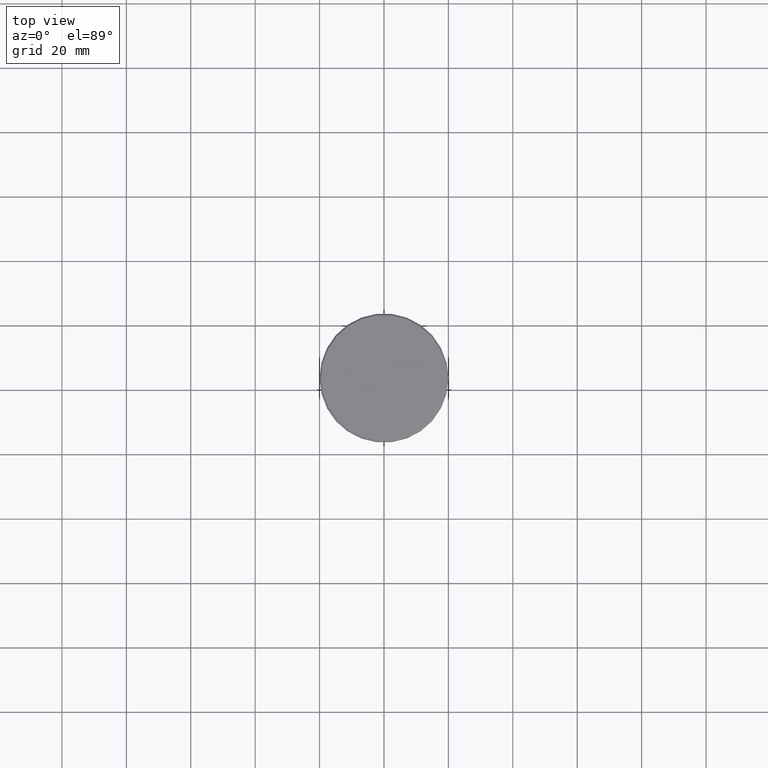
[diagram: clean part render]
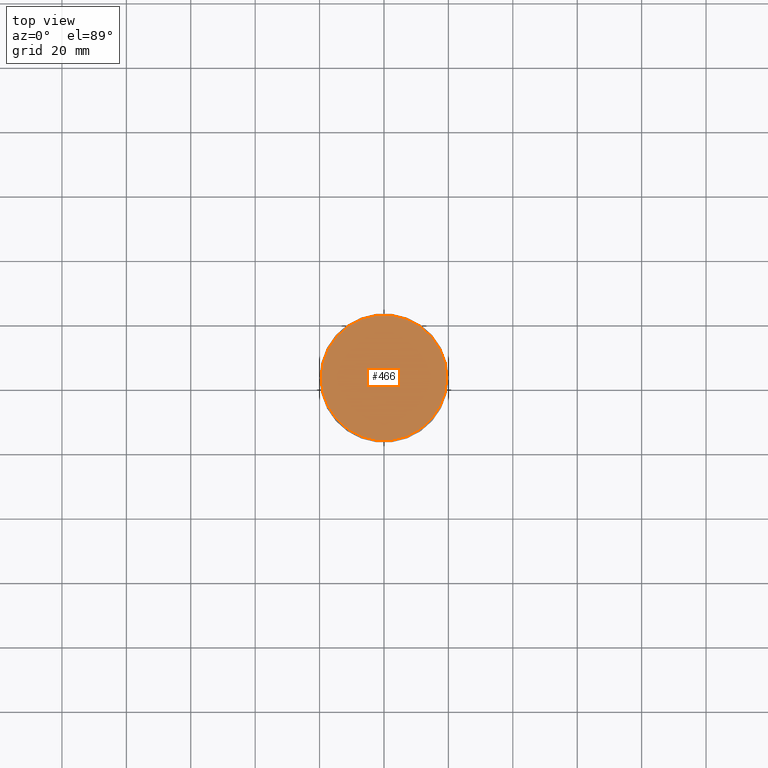
[diagram: same view with one face highlighted and labeled with its STEP entity id]
A machine part, top view. The second image highlights one B-rep face of the part: STEP entity #466.
In plain terms, the highlighted planar face has unit normal (0, -0, 1).
Its self-contained STEP definition (entity closure, byte-faithful):
#181 = PLANE ( 'NONE',  #854 ) ;
#268 = DIRECTION ( 'NONE',  ( -0.000000000000000000, -0.000000000000000000, 1.000000000000000000 ) ) ;
#362 = FACE_OUTER_BOUND ( 'NONE', #605, .T. ) ;
#377 = CARTESIAN_POINT ( 'NONE',  ( 0.000000000000000000, 0.000000000000000000, 0.000000000000000000 ) ) ;
#448 = CARTESIAN_POINT ( 'NONE',  ( 0.000000000000000000, 0.000000000000000000, 0.000000000000000000 ) ) ;
#466 = ADVANCED_FACE ( 'NONE', ( #362 ), #181, .T. ) ;
#566 = CARTESIAN_POINT ( 'NONE',  ( 19.49999999999998934, 2.418677428316021937E-15, 0.000000000000000000 ) ) ;
#581 = EDGE_CURVE ( 'NONE', #977, #858, #747, .T. ) ;
#605 = EDGE_LOOP ( 'NONE', ( #1031, #840 ) ) ;
#625 = DIRECTION ( 'NONE',  ( 1.000000000000000000, 0.000000000000000000, 0.000000000000000000 ) ) ;
#631 = AXIS2_PLACEMENT_3D ( 'NONE', #656, #268, #625 ) ;
#656 = CARTESIAN_POINT ( 'NONE',  ( 0.000000000000000000, 0.000000000000000000, 0.000000000000000000 ) ) ;
#747 = CIRCLE ( 'NONE', #631, 19.49999999999998934 ) ;
#833 = DIRECTION ( 'NONE',  ( 1.000000000000000000, 0.000000000000000000, 0.000000000000000000 ) ) ;
#838 = DIRECTION ( 'NONE',  ( -0.000000000000000000, -0.000000000000000000, 1.000000000000000000 ) ) ;
#839 = CIRCLE ( 'NONE', #959, 19.49999999999998934 ) ;
#840 = ORIENTED_EDGE ( 'NONE', *, *, #581, .T. ) ;
#854 = AXIS2_PLACEMENT_3D ( 'NONE', #448, #1008, #897 ) ;
#858 = VERTEX_POINT ( 'NONE', #1104 ) ;
#897 = DIRECTION ( 'NONE',  ( 1.000000000000000000, 0.000000000000000000, 0.000000000000000000 ) ) ;
#959 = AXIS2_PLACEMENT_3D ( 'NONE', #377, #838, #833 ) ;
#977 = VERTEX_POINT ( 'NONE', #566 ) ;
#994 = EDGE_CURVE ( 'NONE', #858, #977, #839, .T. ) ;
#1008 = DIRECTION ( 'NONE',  ( 0.000000000000000000, -0.000000000000000000, 1.000000000000000000 ) ) ;
#1031 = ORIENTED_EDGE ( 'NONE', *, *, #994, .T. ) ;
#1104 = CARTESIAN_POINT ( 'NONE',  ( -19.49999999999998934, 0.000000000000000000, 0.000000000000000000 ) ) ;